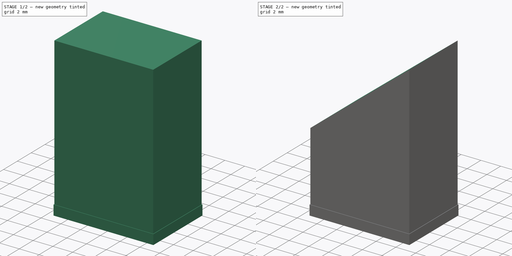
[diagram: build sequence overview — one tinted view per stage of 2, left to right]
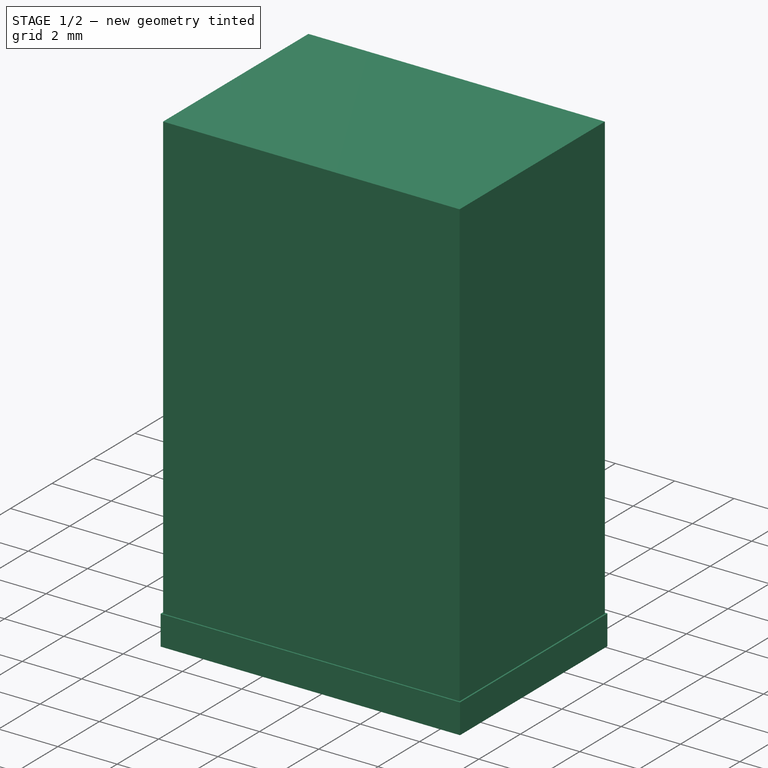
[diagram: stage 1 of 2 — iso view after this stage's code; geometry added in this stage tinted green]
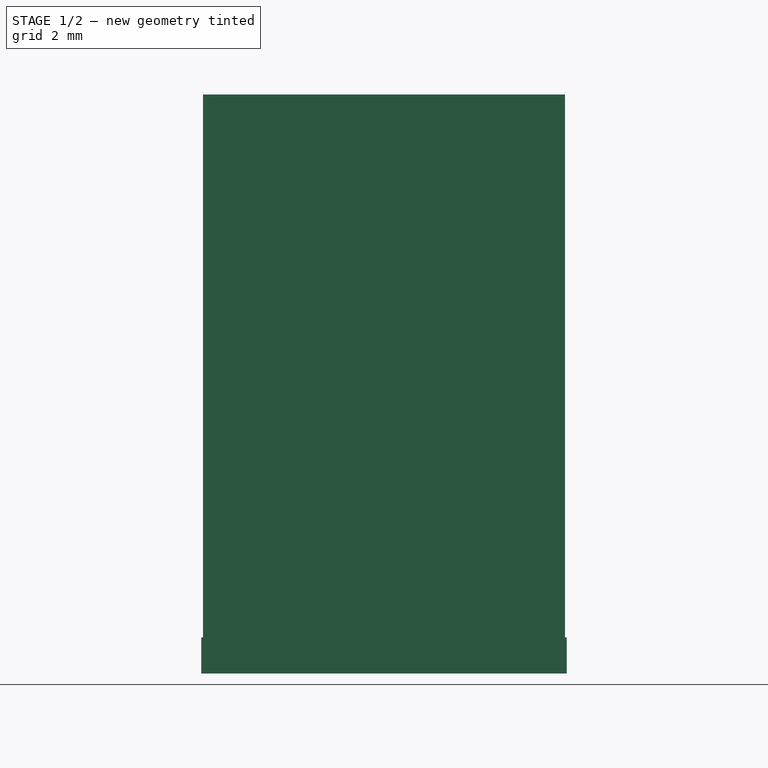
[diagram: stage 1 of 2 — front view after this stage's code; geometry added in this stage tinted green]
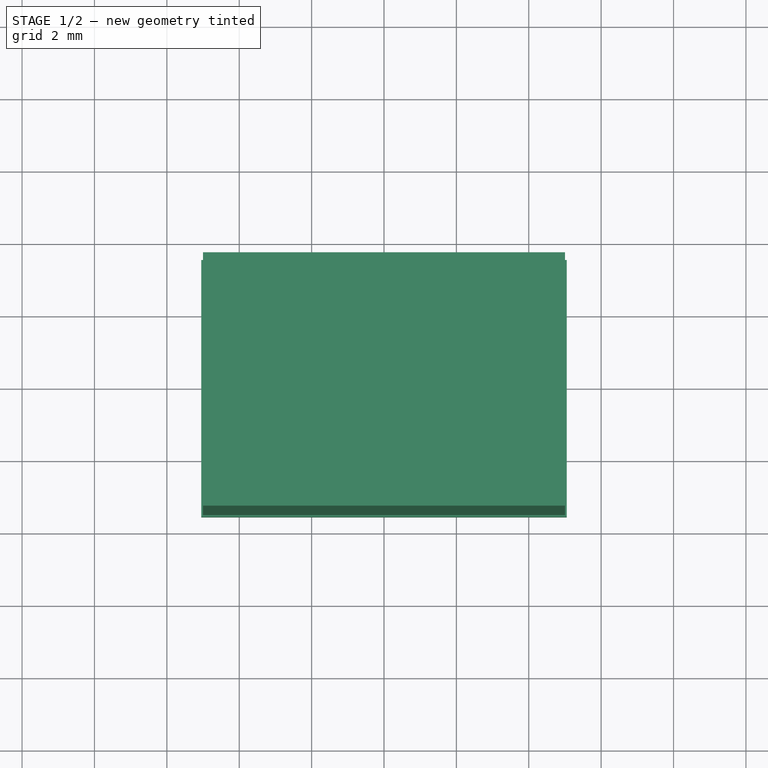
[diagram: stage 1 of 2 — top view after this stage's code; geometry added in this stage tinted green]
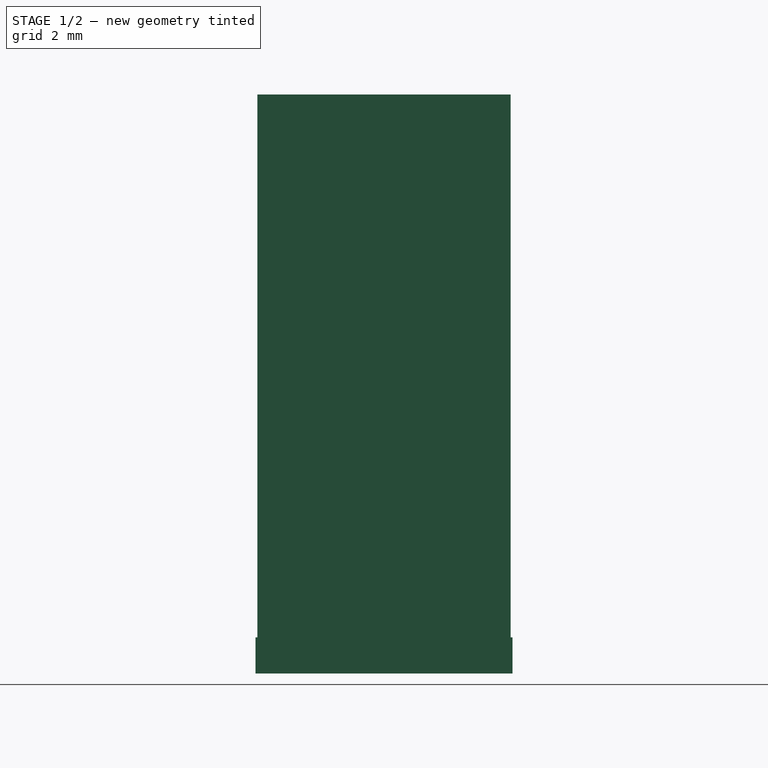
[diagram: stage 1 of 2 — right view after this stage's code; geometry added in this stage tinted green]
FCSTD DOCUMENT  (FreeCAD 0.16R6698 (Git))
Label: 7_P_Cheminee
License: All rights reserved
LicenseURL: http://fr.wikipedia.org/wiki/<copyright redacted>
objects: Sketcher::SketchObject×4, PartDesign::Pad×2, PartDesign::Pocket×2
note: 12 computed .brp shape members not serialized (recipe doc carries the construction recipe); baked Part::Feature solids carry a one-line shape summary decoded from their .brp

FEATURE [Sketcher::SketchObject] Sketch
  sketch-geometry (4):
    g0: LineSegment StartX=-5.05 StartY=3.55 StartZ=0 EndX=5.05 EndY=3.55 EndZ=0
    g1: LineSegment StartX=5.05 StartY=3.55 StartZ=0 EndX=5.05 EndY=-3.55 EndZ=0
    g2: LineSegment StartX=5.05 StartY=-3.55 StartZ=0 EndX=-5.05 EndY=-3.55 EndZ=0
    g3: LineSegment StartX=-5.05 StartY=-3.55 StartZ=0 EndX=-5.05 EndY=3.55 EndZ=0
  constraints (12):
    c: Coincident(g0,g1)
    c: Coincident(g1,g2)
    c: Coincident(g2,g3)
    c: Coincident(g3,g0)
    c: Horizontal(g0)
    c: Horizontal(g2)
    c: Vertical(g1)
    c: Vertical(g3)
    c: DistanceX(g0,g0) = 10.1
    c: DistanceY(g2,g0) = 7.1
    c: Symmetric(g0,g0,g-2)
    c: Symmetric(g2,g0,g-1)
FEATURE [PartDesign::Pad] Pad
  Length = 1
  Length2 = 100
  Sketch = -> Sketch
  Type = 0
FEATURE [Sketcher::SketchObject] Sketch001
  Placement = pos=(0,0,1) rot=(0,0,1;0rad)
  Support = -> Pad [Face6]
  sketch-geometry (4):
    g0: LineSegment StartX=-5 StartY=3.5 StartZ=0 EndX=5 EndY=3.5 EndZ=0
    g1: LineSegment StartX=5 StartY=3.5 StartZ=0 EndX=5 EndY=-3.5 EndZ=0
    g2: LineSegment StartX=5 StartY=-3.5 StartZ=0 EndX=-5 EndY=-3.5 EndZ=0
    g3: LineSegment StartX=-5 StartY=-3.5 StartZ=0 EndX=-5 EndY=3.5 EndZ=0
  constraints (12):
    c: Coincident(g0,g1)
    c: Coincident(g1,g2)
    c: Coincident(g2,g3)
    c: Coincident(g3,g0)
    c: Horizontal(g0)
    c: Horizontal(g2)
    c: Vertical(g1)
    c: Vertical(g3)
    c: DistanceX(g0,g0) = 10
    c: DistanceY(g2,g0) = 7
    c: Symmetric(g0,g0,g-2)
    c: Symmetric(g2,g0,g-1)
FEATURE [PartDesign::Pad] Pad001
  Length = 15
  Length2 = 100
  Sketch = -> Sketch001
  Type = 0
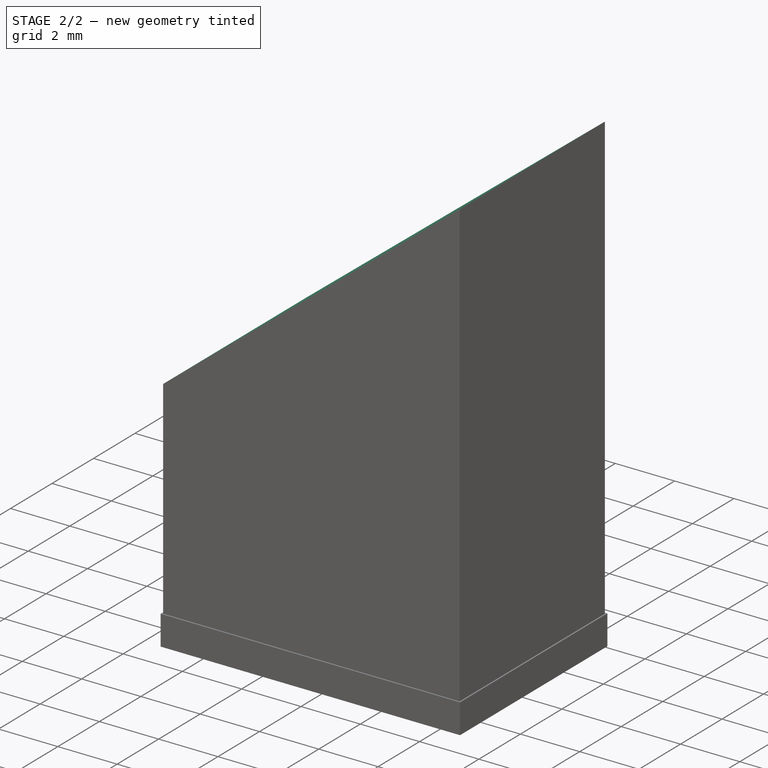
[diagram: stage 2 of 2 — iso view after this stage's code; geometry added in this stage tinted green]
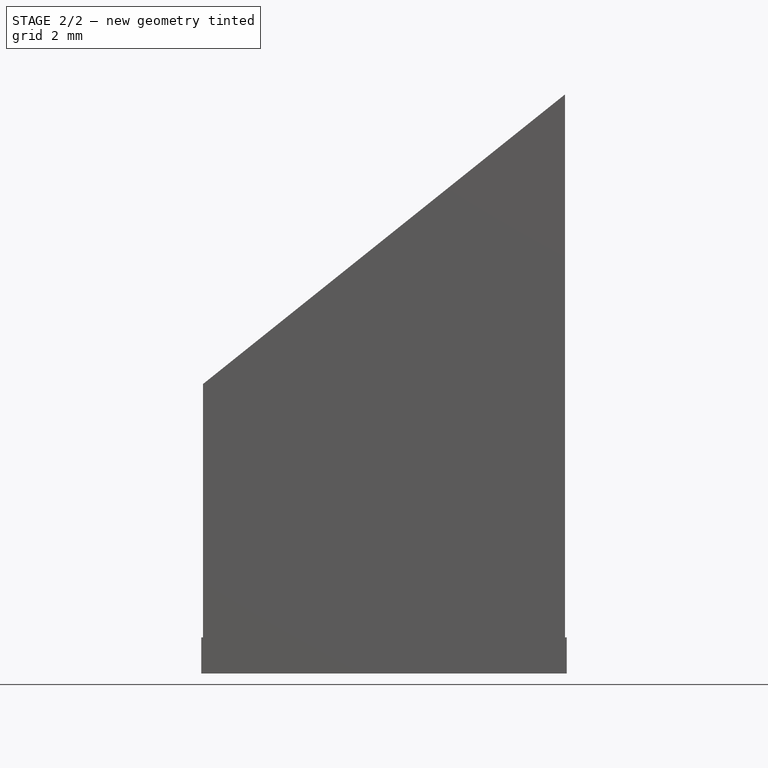
[diagram: stage 2 of 2 — front view after this stage's code; geometry added in this stage tinted green]
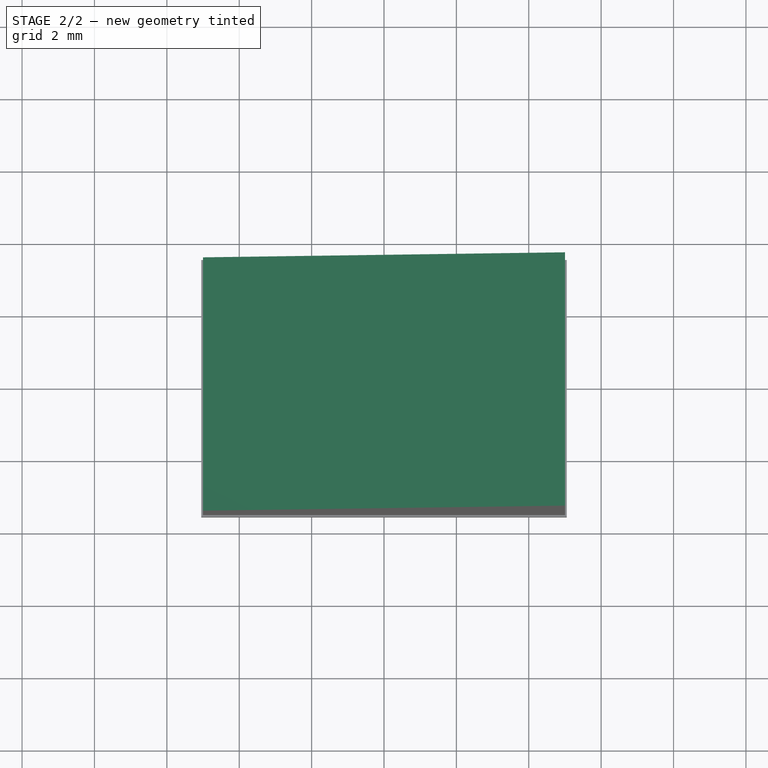
[diagram: stage 2 of 2 — top view after this stage's code; geometry added in this stage tinted green]
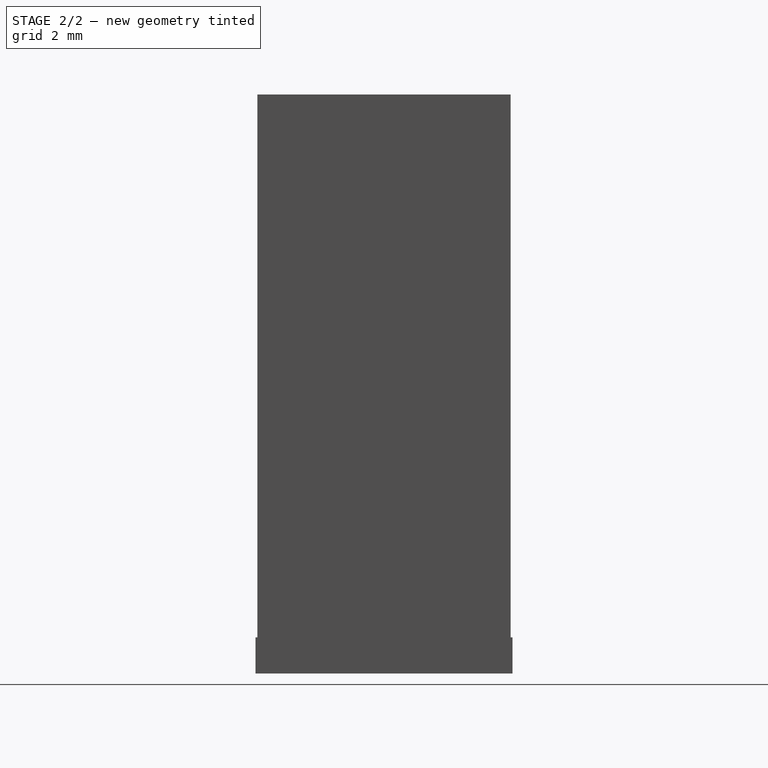
[diagram: stage 2 of 2 — right view after this stage's code; geometry added in this stage tinted green]
FEATURE [Sketcher::SketchObject] Sketch002
  ExternalGeometry = -> [Pad001]
  Placement = pos=(0,-3.5,0) rot=(1,0,0;1.5708rad)
  Support = -> Pad001 [Face7]
  sketch-geometry (3):
    g0: LineSegment StartX=5 StartY=16 StartZ=0 EndX=-20 EndY=16 EndZ=0
    g1: LineSegment StartX=5 StartY=16 StartZ=0 EndX=-20 EndY=-4 EndZ=0
    g2: LineSegment StartX=-20 StartY=-4 StartZ=0 EndX=-20 EndY=16 EndZ=0
  constraints (8):
    c: Horizontal(g0)
    c: Coincident(g1,g0)
    c: Coincident(g2,g1)
    c: Vertical(g2)
    c: Coincident(g0,g2)
    c: DistanceY(g1,g0) = 20
    c: DistanceX(g0,g0) = 25
    c: Coincident(g0,g-3)
FEATURE [PartDesign::Pocket] Pocket
  Length = 5
  Sketch = -> Sketch002
  Type = 1
FEATURE [Sketcher::SketchObject] Sketch003
  Placement = pos=(0,0,0) rot=(1,0,0;3.14159rad)
  Support = -> Pocket [Face4]
  sketch-geometry (4):
    g0: LineSegment StartX=-3 StartY=2 StartZ=0 EndX=3 EndY=2 EndZ=0
    g1: LineSegment StartX=3 StartY=2 StartZ=0 EndX=3 EndY=-2 EndZ=0
    g2: LineSegment StartX=3 StartY=-2 StartZ=0 EndX=-3 EndY=-2 EndZ=0
    g3: LineSegment StartX=-3 StartY=-2 StartZ=0 EndX=-3 EndY=2 EndZ=0
  constraints (12):
    c: Coincident(g0,g1)
    c: Coincident(g1,g2)
    c: Coincident(g2,g3)
    c: Coincident(g3,g0)
    c: Horizontal(g0)
    c: Horizontal(g2)
    c: Vertical(g1)
    c: Vertical(g3)
    c: DistanceX(g0,g0) = 6
    c: Symmetric(g0,g0,g-2)
    c: DistanceY(g2,g0) = 4
    c: Symmetric(g2,g0,g-1)
FEATURE [PartDesign::Pocket] Pocket001
  Length = 8
  Sketch = -> Sketch003
  Type = 0
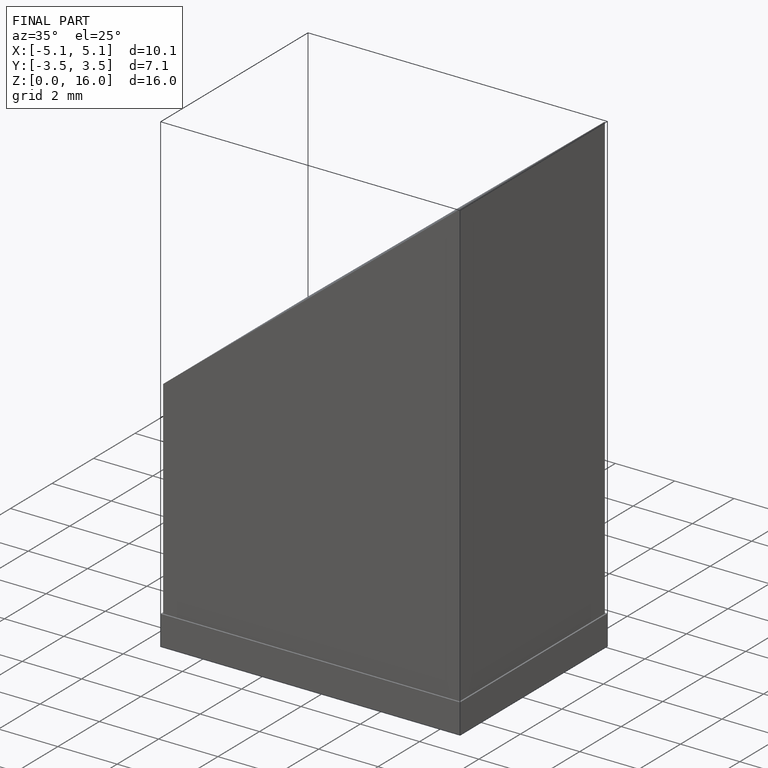
[diagram: finished part — iso view with bounding-box wireframe]
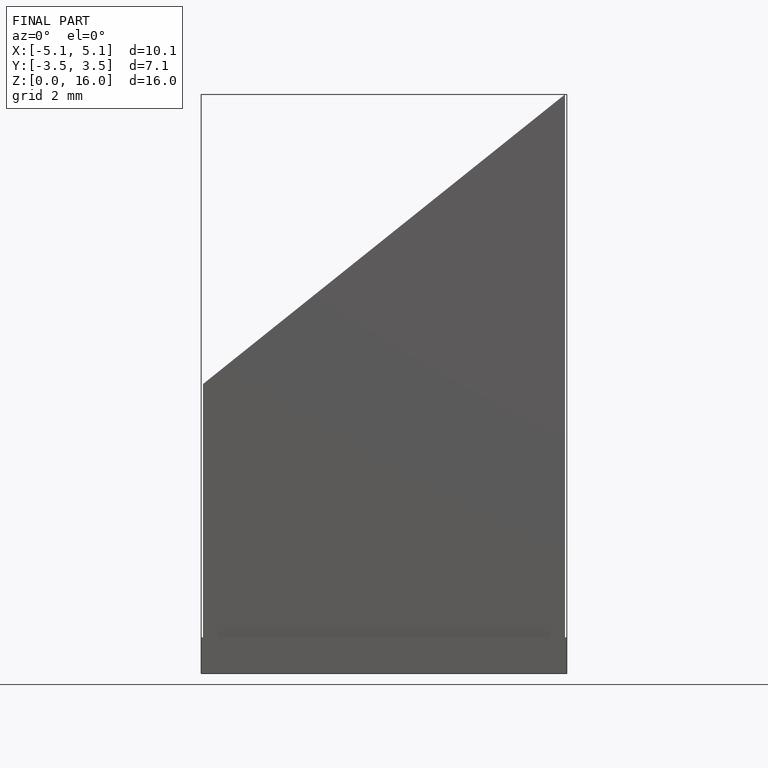
[diagram: finished part — front view with bounding-box wireframe]
